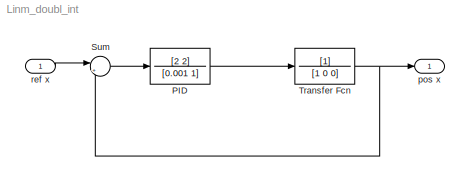
MODEL Linm_doubl_int
KIND model
BLOCK [TransferFcn] PID
  Denominator = [0.001 1]
  Numerator = [2 2]
  SID = 12
BLOCK [Sum] Sum
  IconShape = round
  InputSameDT = off
  Inputs = |+-
  OutDataType = fixdt(1, 16)
  OutDataTypeMode = Inherit via internal rule
  OutDataTypeStr = Inherit: Inherit via internal rule
  OutScaling = 2^0
  Ports = [2, 1]
  SID = 3
  SaturateOnIntegerOverflow = off
BLOCK [TransferFcn] Transfer Fcn
  Denominator = [1 0 0]
  SID = 5
BLOCK [Outport] pos x
  IconDisplay = Port number
  SID = 4
BLOCK [Inport] ref x
  IconDisplay = Port number
  SID = 1
LINE PID:1 -> Transfer Fcn:1
LINE Sum:1 -> PID:1
NET Transfer Fcn:1 -> Sum:2, pos x:1
LINE ref x:1 -> Sum:1
note: NET lines group one-source signal fan-out (src -> all destinations, sorted); 1:1 wires keep LINE
